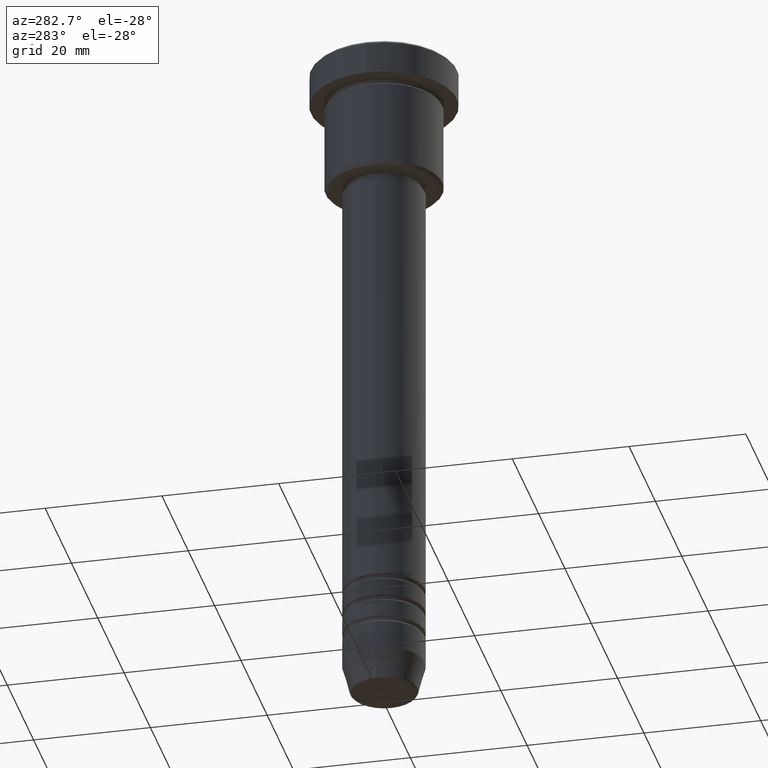
[diagram: clean part render]
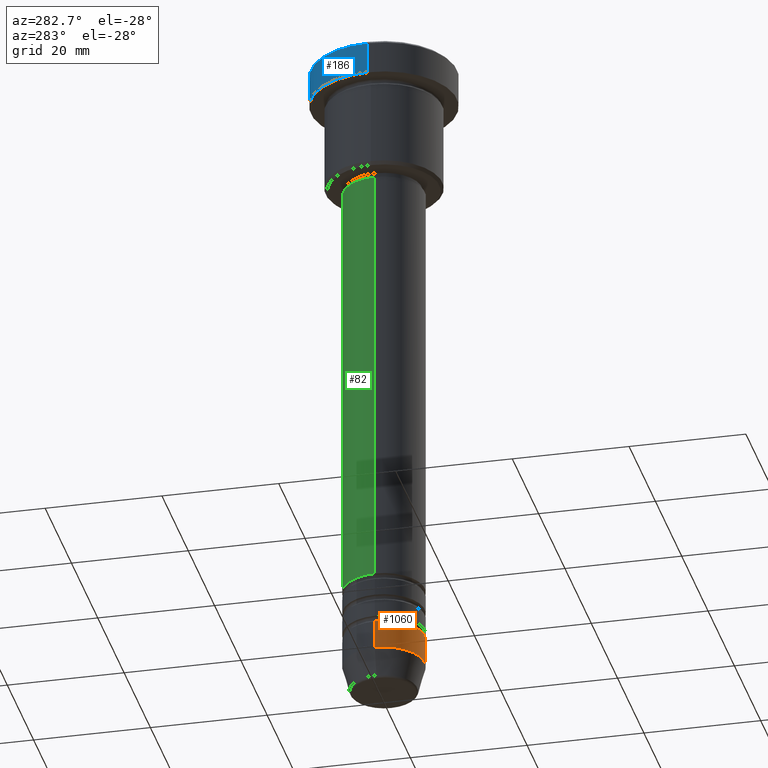
[diagram: same view with three faces highlighted in distinct colors, each labeled with its STEP entity id]
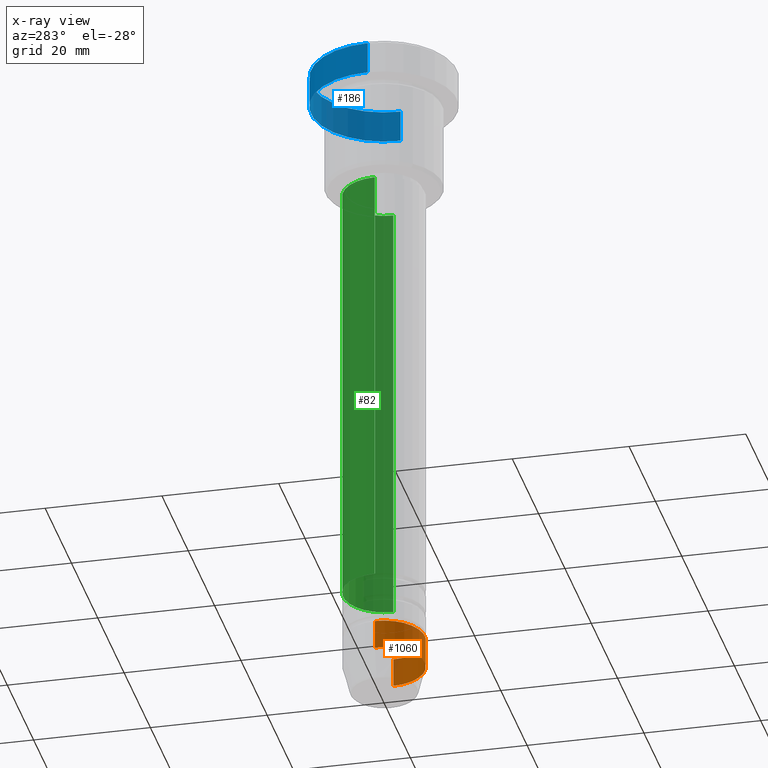
[diagram: x-ray of the same camera — body ghosted, the three highlighted faces saturated]
A machine part, auxiliary view with three faces highlighted in distinct colors.
The next image is the same camera in x-ray (body ghosted, the three faces saturated) — at least one of them is partly hidden behind the body in this view.
Their STEP definitions:

[orange] entity #1060 — the highlighted cylindrical surface (partial cylindrical patch) has radius 7 mm, axis along (-0, -0, 1).
#8 = ORIENTED_EDGE ( 'NONE', *, *, #329, .T. ) ;
#88 = DIRECTION ( 'NONE',  ( 1.000000000000000000, 0.000000000000000000, 0.000000000000000000 ) ) ;
#160 = LINE ( 'NONE', #513, #205 ) ;
#170 = AXIS2_PLACEMENT_3D ( 'NONE', #714, #790, #1085 ) ;
#176 = ORIENTED_EDGE ( 'NONE', *, *, #463, .T. ) ;
#203 = EDGE_LOOP ( 'NONE', ( #1162, #176, #8, #703 ) ) ;
#205 = VECTOR ( 'NONE', #671, 1000.000000000000000 ) ;
#239 = EDGE_CURVE ( 'NONE', #498, #759, #697, .T. ) ;
#321 = CARTESIAN_POINT ( 'NONE',  ( -7.000000000000000000, 8.572527594031473190E-16, 0.000000000000000000 ) ) ;
#329 = EDGE_CURVE ( 'NONE', #933, #984, #160, .T. ) ;
#361 = CIRCLE ( 'NONE', #944, 7.000000000000000000 ) ;
#372 = CARTESIAN_POINT ( 'NONE',  ( 7.000000000000000000, 0.000000000000000000, -107.0000000000000142 ) ) ;
#382 = CARTESIAN_POINT ( 'NONE',  ( 7.000000000000000000, 0.000000000000000000, -112.0000000000000000 ) ) ;
#402 = DIRECTION ( 'NONE',  ( 1.000000000000000000, 0.000000000000000000, 0.000000000000000000 ) ) ;
#451 = EDGE_CURVE ( 'NONE', #759, #984, #361, .T. ) ;
#463 = EDGE_CURVE ( 'NONE', #498, #933, #1095, .T. ) ;
#490 = DIRECTION ( 'NONE',  ( -0.000000000000000000, -0.000000000000000000, 1.000000000000000000 ) ) ;
#498 = VERTEX_POINT ( 'NONE', #1012 ) ;
#499 = CARTESIAN_POINT ( 'NONE',  ( 0.000000000000000000, 0.000000000000000000, 0.000000000000000000 ) ) ;
#513 = CARTESIAN_POINT ( 'NONE',  ( 7.000000000000000000, 0.000000000000000000, 0.000000000000000000 ) ) ;
#556 = AXIS2_PLACEMENT_3D ( 'NONE', #499, #589, #402 ) ;
#589 = DIRECTION ( 'NONE',  ( -0.000000000000000000, -0.000000000000000000, 1.000000000000000000 ) ) ;
#671 = DIRECTION ( 'NONE',  ( -0.000000000000000000, -0.000000000000000000, 1.000000000000000000 ) ) ;
#697 = LINE ( 'NONE', #321, #799 ) ;
#703 = ORIENTED_EDGE ( 'NONE', *, *, #451, .F. ) ;
#714 = CARTESIAN_POINT ( 'NONE',  ( 0.000000000000000000, 0.000000000000000000, -112.0000000000000000 ) ) ;
#759 = VERTEX_POINT ( 'NONE', #1154 ) ;
#790 = DIRECTION ( 'NONE',  ( -0.000000000000000000, -0.000000000000000000, 1.000000000000000000 ) ) ;
#799 = VECTOR ( 'NONE', #490, 1000.000000000000000 ) ;
#885 = CARTESIAN_POINT ( 'NONE',  ( 0.000000000000000000, 0.000000000000000000, -107.0000000000000142 ) ) ;
#899 = DIRECTION ( 'NONE',  ( -0.000000000000000000, -0.000000000000000000, 1.000000000000000000 ) ) ;
#933 = VERTEX_POINT ( 'NONE', #382 ) ;
#944 = AXIS2_PLACEMENT_3D ( 'NONE', #885, #899, #88 ) ;
#947 = CYLINDRICAL_SURFACE ( 'NONE', #556, 7.000000000000000000 ) ;
#961 = FACE_OUTER_BOUND ( 'NONE', #203, .T. ) ;
#984 = VERTEX_POINT ( 'NONE', #372 ) ;
#1012 = CARTESIAN_POINT ( 'NONE',  ( -7.000000000000000000, 8.572527594031473190E-16, -112.0000000000000000 ) ) ;
#1060 = ADVANCED_FACE ( 'NONE', ( #961 ), #947, .T. ) ;
#1085 = DIRECTION ( 'NONE',  ( 1.000000000000000000, 0.000000000000000000, 0.000000000000000000 ) ) ;
#1095 = CIRCLE ( 'NONE', #170, 7.000000000000000000 ) ;
#1154 = CARTESIAN_POINT ( 'NONE',  ( -7.000000000000000000, 8.572527594031473190E-16, -107.0000000000000142 ) ) ;
#1162 = ORIENTED_EDGE ( 'NONE', *, *, #239, .F. ) ;

[blue] entity #186 — the highlighted cylindrical surface (partial cylindrical patch) has radius 12.5 mm, axis along (-0, -0, 1).
#21 = FACE_OUTER_BOUND ( 'NONE', #97, .T. ) ;
#31 = CARTESIAN_POINT ( 'NONE',  ( 12.50000000000000000, 0.000000000000000000, 0.000000000000000000 ) ) ;
#40 = CARTESIAN_POINT ( 'NONE',  ( -12.50000000000000000, 1.530808498934191521E-15, -5.999999999999996447 ) ) ;
#74 = ORIENTED_EDGE ( 'NONE', *, *, #605, .F. ) ;
#97 = EDGE_LOOP ( 'NONE', ( #793, #661, #529, #74 ) ) ;
#116 = LINE ( 'NONE', #473, #600 ) ;
#122 = DIRECTION ( 'NONE',  ( 1.000000000000000000, 0.000000000000000000, 0.000000000000000000 ) ) ;
#186 = ADVANCED_FACE ( 'NONE', ( #21 ), #565, .T. ) ;
#189 = DIRECTION ( 'NONE',  ( -0.000000000000000000, -0.000000000000000000, 1.000000000000000000 ) ) ;
#204 = CARTESIAN_POINT ( 'NONE',  ( 0.000000000000000000, 0.000000000000000000, -5.999999999999996447 ) ) ;
#265 = AXIS2_PLACEMENT_3D ( 'NONE', #204, #554, #542 ) ;
#274 = CARTESIAN_POINT ( 'NONE',  ( -12.50000000000000000, 1.530808498934191521E-15, -0.4999999999999779066 ) ) ;
#326 = CARTESIAN_POINT ( 'NONE',  ( 0.000000000000000000, 0.000000000000000000, -0.4999999999999779066 ) ) ;
#387 = DIRECTION ( 'NONE',  ( -0.000000000000000000, -0.000000000000000000, 1.000000000000000000 ) ) ;
#464 = VERTEX_POINT ( 'NONE', #998 ) ;
#473 = CARTESIAN_POINT ( 'NONE',  ( -12.50000000000000000, 1.530808498934191521E-15, 0.000000000000000000 ) ) ;
#493 = DIRECTION ( 'NONE',  ( 0.000000000000000000, 0.000000000000000000, -1.000000000000000000 ) ) ;
#526 = CIRCLE ( 'NONE', #265, 12.50000000000000000 ) ;
#529 = ORIENTED_EDGE ( 'NONE', *, *, #1116, .T. ) ;
#542 = DIRECTION ( 'NONE',  ( 1.000000000000000000, 0.000000000000000000, 0.000000000000000000 ) ) ;
#554 = DIRECTION ( 'NONE',  ( -0.000000000000000000, -0.000000000000000000, 1.000000000000000000 ) ) ;
#565 = CYLINDRICAL_SURFACE ( 'NONE', #1089, 12.50000000000000000 ) ;
#569 = EDGE_CURVE ( 'NONE', #776, #624, #116, .T. ) ;
#600 = VECTOR ( 'NONE', #387, 1000.000000000000000 ) ;
#605 = EDGE_CURVE ( 'NONE', #1100, #464, #641, .T. ) ;
#623 = CIRCLE ( 'NONE', #848, 12.50000000000000000 ) ;
#624 = VERTEX_POINT ( 'NONE', #274 ) ;
#641 = LINE ( 'NONE', #31, #693 ) ;
#661 = ORIENTED_EDGE ( 'NONE', *, *, #569, .T. ) ;
#668 = CARTESIAN_POINT ( 'NONE',  ( 12.50000000000000000, 0.000000000000000000, -5.999999999999996447 ) ) ;
#693 = VECTOR ( 'NONE', #189, 1000.000000000000000 ) ;
#755 = DIRECTION ( 'NONE',  ( 1.000000000000000000, 0.000000000000000000, 0.000000000000000000 ) ) ;
#776 = VERTEX_POINT ( 'NONE', #40 ) ;
#793 = ORIENTED_EDGE ( 'NONE', *, *, #935, .T. ) ;
#848 = AXIS2_PLACEMENT_3D ( 'NONE', #326, #493, #755 ) ;
#935 = EDGE_CURVE ( 'NONE', #1100, #776, #526, .T. ) ;
#937 = DIRECTION ( 'NONE',  ( -0.000000000000000000, -0.000000000000000000, 1.000000000000000000 ) ) ;
#998 = CARTESIAN_POINT ( 'NONE',  ( 12.50000000000000000, 0.000000000000000000, -0.4999999999999779066 ) ) ;
#1008 = CARTESIAN_POINT ( 'NONE',  ( 0.000000000000000000, 0.000000000000000000, 0.000000000000000000 ) ) ;
#1089 = AXIS2_PLACEMENT_3D ( 'NONE', #1008, #937, #122 ) ;
#1100 = VERTEX_POINT ( 'NONE', #668 ) ;
#1116 = EDGE_CURVE ( 'NONE', #624, #464, #623, .T. ) ;

[green] entity #82 — the highlighted cylindrical surface (partial cylindrical patch) has radius 7 mm, axis along (-0, -0, 1).
#6 = DIRECTION ( 'NONE',  ( -0.000000000000000000, -0.000000000000000000, 1.000000000000000000 ) ) ;
#33 = LINE ( 'NONE', #1030, #983 ) ;
#56 = EDGE_LOOP ( 'NONE', ( #1147, #315, #125, #609 ) ) ;
#82 = ADVANCED_FACE ( 'NONE', ( #201 ), #461, .T. ) ;
#101 = DIRECTION ( 'NONE',  ( 1.000000000000000000, 0.000000000000000000, 0.000000000000000000 ) ) ;
#125 = ORIENTED_EDGE ( 'NONE', *, *, #292, .F. ) ;
#154 = VERTEX_POINT ( 'NONE', #736 ) ;
#174 = EDGE_CURVE ( 'NONE', #604, #254, #33, .T. ) ;
#201 = FACE_OUTER_BOUND ( 'NONE', #56, .T. ) ;
#247 = VECTOR ( 'NONE', #501, 1000.000000000000000 ) ;
#254 = VERTEX_POINT ( 'NONE', #313 ) ;
#292 = EDGE_CURVE ( 'NONE', #299, #254, #986, .T. ) ;
#299 = VERTEX_POINT ( 'NONE', #772 ) ;
#313 = CARTESIAN_POINT ( 'NONE',  ( -7.000000000000000888, 8.572527594031474176E-16, -23.00000000000000000 ) ) ;
#315 = ORIENTED_EDGE ( 'NONE', *, *, #174, .T. ) ;
#316 = CARTESIAN_POINT ( 'NONE',  ( 0.000000000000000000, 0.000000000000000000, -97.99999999999988631 ) ) ;
#317 = EDGE_CURVE ( 'NONE', #154, #299, #689, .T. ) ;
#330 = CARTESIAN_POINT ( 'NONE',  ( 0.000000000000000000, 0.000000000000000000, -23.00000000000000000 ) ) ;
#379 = CARTESIAN_POINT ( 'NONE',  ( -7.000000000000000888, 8.572527594031474176E-16, -97.99999999999988631 ) ) ;
#380 = DIRECTION ( 'NONE',  ( -0.000000000000000000, -0.000000000000000000, 1.000000000000000000 ) ) ;
#461 = CYLINDRICAL_SURFACE ( 'NONE', #742, 7.000000000000000888 ) ;
#485 = AXIS2_PLACEMENT_3D ( 'NONE', #330, #1149, #1043 ) ;
#501 = DIRECTION ( 'NONE',  ( -0.000000000000000000, -0.000000000000000000, 1.000000000000000000 ) ) ;
#524 = CIRCLE ( 'NONE', #1120, 7.000000000000000888 ) ;
#604 = VERTEX_POINT ( 'NONE', #379 ) ;
#609 = ORIENTED_EDGE ( 'NONE', *, *, #317, .F. ) ;
#689 = LINE ( 'NONE', #1057, #247 ) ;
#736 = CARTESIAN_POINT ( 'NONE',  ( 7.000000000000000888, 0.000000000000000000, -97.99999999999988631 ) ) ;
#742 = AXIS2_PLACEMENT_3D ( 'NONE', #1018, #1013, #101 ) ;
#772 = CARTESIAN_POINT ( 'NONE',  ( 7.000000000000000888, 0.000000000000000000, -23.00000000000000000 ) ) ;
#903 = EDGE_CURVE ( 'NONE', #154, #604, #524, .T. ) ;
#916 = DIRECTION ( 'NONE',  ( 1.000000000000000000, 0.000000000000000000, 0.000000000000000000 ) ) ;
#983 = VECTOR ( 'NONE', #380, 1000.000000000000000 ) ;
#986 = CIRCLE ( 'NONE', #485, 7.000000000000000888 ) ;
#1013 = DIRECTION ( 'NONE',  ( -0.000000000000000000, -0.000000000000000000, 1.000000000000000000 ) ) ;
#1018 = CARTESIAN_POINT ( 'NONE',  ( 0.000000000000000000, 0.000000000000000000, 0.000000000000000000 ) ) ;
#1030 = CARTESIAN_POINT ( 'NONE',  ( -7.000000000000000888, 8.572527594031474176E-16, 0.000000000000000000 ) ) ;
#1043 = DIRECTION ( 'NONE',  ( 1.000000000000000000, 0.000000000000000000, 0.000000000000000000 ) ) ;
#1057 = CARTESIAN_POINT ( 'NONE',  ( 7.000000000000000888, 0.000000000000000000, 0.000000000000000000 ) ) ;
#1120 = AXIS2_PLACEMENT_3D ( 'NONE', #316, #6, #916 ) ;
#1147 = ORIENTED_EDGE ( 'NONE', *, *, #903, .T. ) ;
#1149 = DIRECTION ( 'NONE',  ( -0.000000000000000000, -0.000000000000000000, 1.000000000000000000 ) ) ;